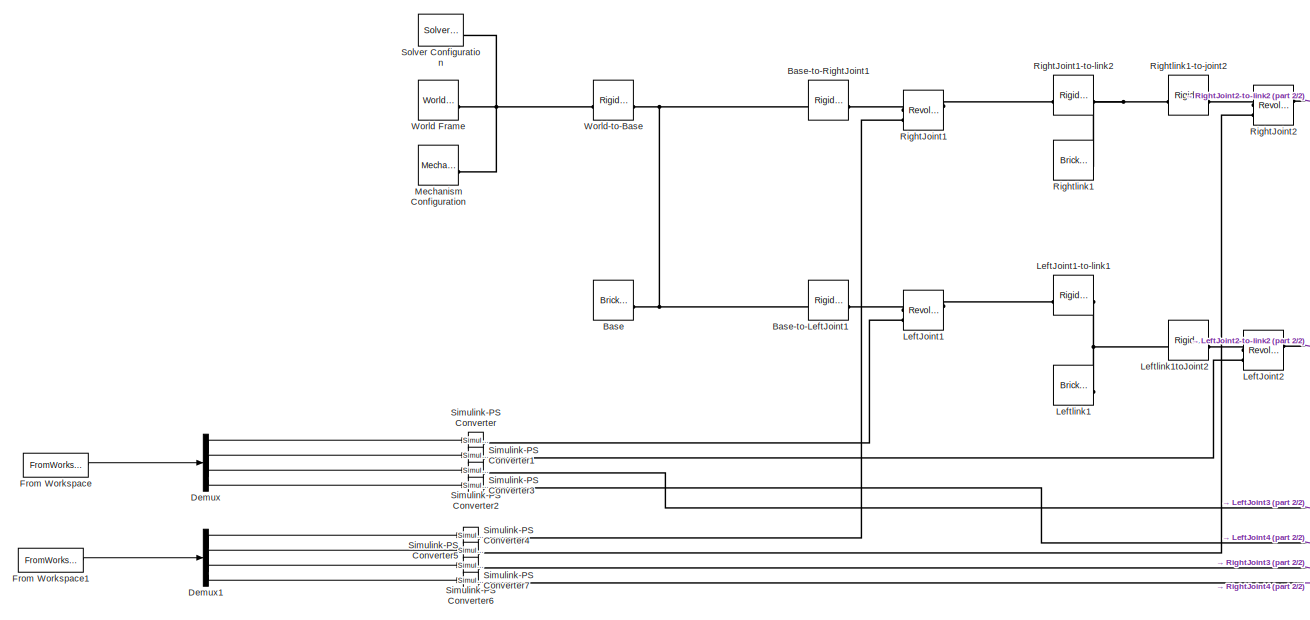
[diagram: root canvas - part 1/2, left side, full height]
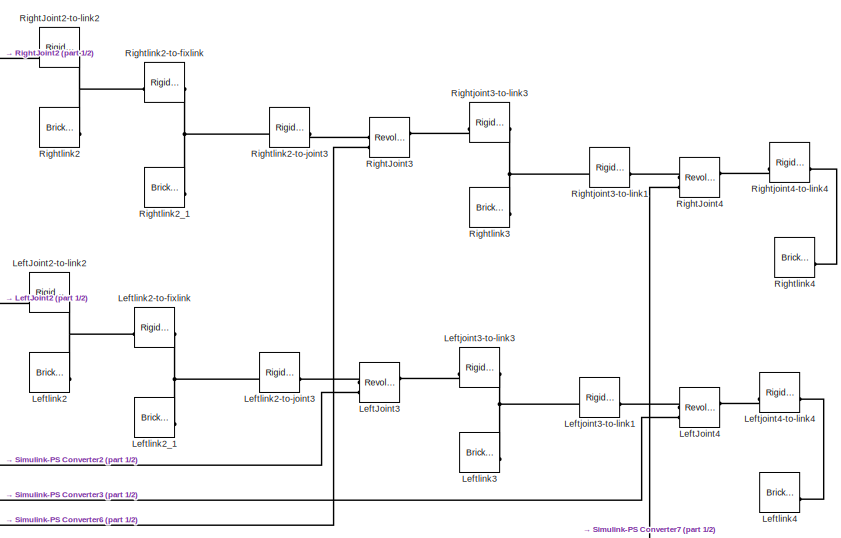
[diagram: root canvas - part 2/2, right side, full height]
MODEL slx_65f04d135356
KIND model
CONFIG AbsTol = auto
CONFIG EnableMultiTasking = off
CONFIG FixedStep = auto
CONFIG MaxStep = auto
CONFIG MinStep = auto
CONFIG RelTol = 1e-3
CONFIG SampleTimeConstraint = Unconstrained
CONFIG SolverName = VariableStepAuto
CONFIG StartTime = 0.0
CONFIG StopTime = time_vector(end)
BLOCK [Reference] Base  REF=sm_lib/Body Elements/Brick Solid
  SourceBlock = sm_lib/Body Elements/Brick Solid
  SourceType = Brick Solid
BLOCK [Reference] Base-to-LeftJoint1  REF=sm_lib/Frames and
Transforms/Rigid
Transform
  SourceBlock = sm_lib/Frames and\nTransforms/Rigid\nTransform
  SourceType = Rigid\nTransform
BLOCK [Reference] Base-to-RightJoint1  REF=sm_lib/Frames and
Transforms/Rigid
Transform
  SourceBlock = sm_lib/Frames and\nTransforms/Rigid\nTransform
  SourceType = Rigid\nTransform
BLOCK [Demux] Demux
BLOCK [Demux] Demux1
BLOCK [FromWorkspace] From Workspace
  SampleTime = Ts
  VariableName = arm1_data
BLOCK [FromWorkspace] From Workspace1
  SampleTime = Ts
  VariableName = arm2_data
BLOCK [Reference] LeftJoint1  REF=sm_lib/Joints/Revolute Joint
  SourceBlock = sm_lib/Joints/Revolute Joint
  SourceType = Revolute Joint
BLOCK [Reference] LeftJoint1-to-link1  REF=sm_lib/Frames and
Transforms/Rigid
Transform
  SourceBlock = sm_lib/Frames and\nTransforms/Rigid\nTransform
  SourceType = Rigid\nTransform
BLOCK [Reference] LeftJoint2  REF=sm_lib/Joints/Revolute Joint
  SourceBlock = sm_lib/Joints/Revolute Joint
  SourceType = Revolute Joint
BLOCK [Reference] LeftJoint2-to-link2  REF=sm_lib/Frames and
Transforms/Rigid
Transform
  SourceBlock = sm_lib/Frames and\nTransforms/Rigid\nTransform
  SourceType = Rigid\nTransform
BLOCK [Reference] LeftJoint3  REF=sm_lib/Joints/Revolute Joint
  SourceBlock = sm_lib/Joints/Revolute Joint
  SourceType = Revolute Joint
BLOCK [Reference] LeftJoint4  REF=sm_lib/Joints/Revolute Joint
  SourceBlock = sm_lib/Joints/Revolute Joint
  SourceType = Revolute Joint
BLOCK [Reference] Leftjoint3-to-link1  REF=sm_lib/Frames and
Transforms/Rigid
Transform
  SourceBlock = sm_lib/Frames and\nTransforms/Rigid\nTransform
  SourceType = Rigid\nTransform
BLOCK [Reference] Leftjoint3-to-link3  REF=sm_lib/Frames and
Transforms/Rigid
Transform
  SourceBlock = sm_lib/Frames and\nTransforms/Rigid\nTransform
  SourceType = Rigid\nTransform
BLOCK [Reference] Leftjoint4-to-link4  REF=sm_lib/Frames and
Transforms/Rigid
Transform
  SourceBlock = sm_lib/Frames and\nTransforms/Rigid\nTransform
  SourceType = Rigid\nTransform
BLOCK [Reference] Leftlink1  REF=sm_lib/Body Elements/Brick Solid
  SourceBlock = sm_lib/Body Elements/Brick Solid
  SourceType = Brick Solid
BLOCK [Reference] Leftlink1toJoint2  REF=sm_lib/Frames and
Transforms/Rigid
Transform
  SourceBlock = sm_lib/Frames and\nTransforms/Rigid\nTransform
  SourceType = Rigid\nTransform
BLOCK [Reference] Leftlink2  REF=sm_lib/Body Elements/Brick Solid
  SourceBlock = sm_lib/Body Elements/Brick Solid
  SourceType = Brick Solid
BLOCK [Reference] Leftlink2-to-fixlink  REF=sm_lib/Frames and
Transforms/Rigid
Transform
  SourceBlock = sm_lib/Frames and\nTransforms/Rigid\nTransform
  SourceType = Rigid\nTransform
BLOCK [Reference] Leftlink2-to-joint3  REF=sm_lib/Frames and
Transforms/Rigid
Transform
  SourceBlock = sm_lib/Frames and\nTransforms/Rigid\nTransform
  SourceType = Rigid\nTransform
BLOCK [Reference] Leftlink2_1  REF=sm_lib/Body Elements/Brick Solid
  SourceBlock = sm_lib/Body Elements/Brick Solid
  SourceType = Brick Solid
BLOCK [Reference] Leftlink3  REF=sm_lib/Body Elements/Brick Solid
  SourceBlock = sm_lib/Body Elements/Brick Solid
  SourceType = Brick Solid
BLOCK [Reference] Leftlink4  REF=sm_lib/Body Elements/Brick Solid
  SourceBlock = sm_lib/Body Elements/Brick Solid
  SourceType = Brick Solid
BLOCK [Reference] Mechanism Configuration  REF=sm_lib/Utilities/Mechanism
Configuration
  SourceBlock = sm_lib/Utilities/Mechanism\nConfiguration
  SourceType = Mechanism\nConfiguration
BLOCK [Reference] RightJoint1  REF=sm_lib/Joints/Revolute Joint
  SourceBlock = sm_lib/Joints/Revolute Joint
  SourceType = Revolute Joint
BLOCK [Reference] RightJoint1-to-link2  REF=sm_lib/Frames and
Transforms/Rigid
Transform
  SourceBlock = sm_lib/Frames and\nTransforms/Rigid\nTransform
  SourceType = Rigid\nTransform
BLOCK [Reference] RightJoint2  REF=sm_lib/Joints/Revolute Joint
  SourceBlock = sm_lib/Joints/Revolute Joint
  SourceType = Revolute Joint
BLOCK [Reference] RightJoint2-to-link2  REF=sm_lib/Frames and
Transforms/Rigid
Transform
  SourceBlock = sm_lib/Frames and\nTransforms/Rigid\nTransform
  SourceType = Rigid\nTransform
BLOCK [Reference] RightJoint3  REF=sm_lib/Joints/Revolute Joint
  SourceBlock = sm_lib/Joints/Revolute Joint
  SourceType = Revolute Joint
BLOCK [Reference] RightJoint4  REF=sm_lib/Joints/Revolute Joint
  SourceBlock = sm_lib/Joints/Revolute Joint
  SourceType = Revolute Joint
BLOCK [Reference] Rightjoint3-to-link1  REF=sm_lib/Frames and
Transforms/Rigid
Transform
  SourceBlock = sm_lib/Frames and\nTransforms/Rigid\nTransform
  SourceType = Rigid\nTransform
BLOCK [Reference] Rightjoint3-to-link3  REF=sm_lib/Frames and
Transforms/Rigid
Transform
  SourceBlock = sm_lib/Frames and\nTransforms/Rigid\nTransform
  SourceType = Rigid\nTransform
BLOCK [Reference] Rightjoint4-to-link4  REF=sm_lib/Frames and
Transforms/Rigid
Transform
  SourceBlock = sm_lib/Frames and\nTransforms/Rigid\nTransform
  SourceType = Rigid\nTransform
BLOCK [Reference] Rightlink1  REF=sm_lib/Body Elements/Brick Solid
  SourceBlock = sm_lib/Body Elements/Brick Solid
  SourceType = Brick Solid
BLOCK [Reference] Rightlink1-to-joint2  REF=sm_lib/Frames and
Transforms/Rigid
Transform
  SourceBlock = sm_lib/Frames and\nTransforms/Rigid\nTransform
  SourceType = Rigid\nTransform
BLOCK [Reference] Rightlink2  REF=sm_lib/Body Elements/Brick Solid
  SourceBlock = sm_lib/Body Elements/Brick Solid
  SourceType = Brick Solid
BLOCK [Reference] Rightlink2-to-fixlink  REF=sm_lib/Frames and
Transforms/Rigid
Transform
  SourceBlock = sm_lib/Frames and\nTransforms/Rigid\nTransform
  SourceType = Rigid\nTransform
BLOCK [Reference] Rightlink2-to-joint3  REF=sm_lib/Frames and
Transforms/Rigid
Transform
  SourceBlock = sm_lib/Frames and\nTransforms/Rigid\nTransform
  SourceType = Rigid\nTransform
BLOCK [Reference] Rightlink2_1  REF=sm_lib/Body Elements/Brick Solid
  SourceBlock = sm_lib/Body Elements/Brick Solid
  SourceType = Brick Solid
BLOCK [Reference] Rightlink3  REF=sm_lib/Body Elements/Brick Solid
  SourceBlock = sm_lib/Body Elements/Brick Solid
  SourceType = Brick Solid
BLOCK [Reference] Rightlink4  REF=sm_lib/Body Elements/Brick Solid
  SourceBlock = sm_lib/Body Elements/Brick Solid
  SourceType = Brick Solid
BLOCK [Reference] Simulink-PS Converter  REF=nesl_utility/Simulink-PS
Converter
  SourceBlock = nesl_utility/Simulink-PS\nConverter
  SourceType = Simulink-PS\nConverter
BLOCK [Reference] Simulink-PS Converter1  REF=nesl_utility/Simulink-PS
Converter
  SourceBlock = nesl_utility/Simulink-PS\nConverter
  SourceType = Simulink-PS\nConverter
BLOCK [Reference] Simulink-PS Converter2  REF=nesl_utility/Simulink-PS
Converter
  SourceBlock = nesl_utility/Simulink-PS\nConverter
  SourceType = Simulink-PS\nConverter
BLOCK [Reference] Simulink-PS Converter3  REF=nesl_utility/Simulink-PS
Converter
  SourceBlock = nesl_utility/Simulink-PS\nConverter
  SourceType = Simulink-PS\nConverter
BLOCK [Reference] Simulink-PS Converter4  REF=nesl_utility/Simulink-PS
Converter
  SourceBlock = nesl_utility/Simulink-PS\nConverter
  SourceType = Simulink-PS\nConverter
BLOCK [Reference] Simulink-PS Converter5  REF=nesl_utility/Simulink-PS
Converter
  SourceBlock = nesl_utility/Simulink-PS\nConverter
  SourceType = Simulink-PS\nConverter
BLOCK [Reference] Simulink-PS Converter6  REF=nesl_utility/Simulink-PS
Converter
  SourceBlock = nesl_utility/Simulink-PS\nConverter
  SourceType = Simulink-PS\nConverter
BLOCK [Reference] Simulink-PS Converter7  REF=nesl_utility/Simulink-PS
Converter
  SourceBlock = nesl_utility/Simulink-PS\nConverter
  SourceType = Simulink-PS\nConverter
BLOCK [Reference] Solver Configuration  REF=nesl_utility/Solver
Configuration
  SourceBlock = nesl_utility/Solver\nConfiguration
  SourceType = Solver\nConfiguration
BLOCK [Reference] World Frame  REF=sm_lib/Frames and
Transforms/World Frame
  SourceBlock = sm_lib/Frames and\nTransforms/World Frame
  SourceType = World Frame
BLOCK [Reference] World-to-Base  REF=sm_lib/Frames and
Transforms/Rigid
Transform
  SourceBlock = sm_lib/Frames and\nTransforms/Rigid\nTransform
  SourceType = Rigid\nTransform
LINE Demux1:1 -> Simulink-PS Converter4:1
LINE Demux1:2 -> Simulink-PS Converter5:1
LINE Demux1:3 -> Simulink-PS Converter6:1
LINE Demux1:4 -> Simulink-PS Converter7:1
LINE Demux:1 -> Simulink-PS Converter:1
LINE Demux:2 -> Simulink-PS Converter1:1
LINE Demux:3 -> Simulink-PS Converter2:1
LINE Demux:4 -> Simulink-PS Converter3:1
LINE From Workspace1:1 -> Demux1:1
LINE From Workspace:1 -> Demux:1
PNET net1: Base-to-LeftJoint1:LConn1 -- Base-to-RightJoint1:LConn1 -- Base:RConn1 -- World-to-Base:RConn1
PLINE Base-to-LeftJoint1:RConn1 -- LeftJoint1:LConn1
PLINE Base-to-RightJoint1:RConn1 -- RightJoint1:LConn1
PLINE LeftJoint1-to-link1:LConn1 -- LeftJoint1:RConn1
PNET net2: LeftJoint1-to-link1:RConn1 -- Leftlink1:RConn1 -- Leftlink1toJoint2:LConn1
PLINE LeftJoint1:LConn2 -- Simulink-PS Converter:RConn1
PLINE LeftJoint2-to-link2:LConn1 -- LeftJoint2:RConn1
PNET net3: LeftJoint2-to-link2:RConn1 -- Leftlink2-to-fixlink:LConn1 -- Leftlink2:RConn1
PLINE LeftJoint2:LConn1 -- Leftlink1toJoint2:RConn1
PLINE LeftJoint2:LConn2 -- Simulink-PS Converter1:RConn1
PLINE LeftJoint3:LConn1 -- Leftlink2-to-joint3:RConn1
PLINE LeftJoint3:LConn2 -- Simulink-PS Converter2:RConn1
PLINE LeftJoint3:RConn1 -- Leftjoint3-to-link3:LConn1
PLINE LeftJoint4:LConn1 -- Leftjoint3-to-link1:RConn1
PLINE LeftJoint4:LConn2 -- Simulink-PS Converter3:RConn1
PLINE LeftJoint4:RConn1 -- Leftjoint4-to-link4:LConn1
PNET net4: Leftjoint3-to-link1:LConn1 -- Leftjoint3-to-link3:RConn1 -- Leftlink3:RConn1
PLINE Leftjoint4-to-link4:RConn1 -- Leftlink4:RConn1
PNET net5: Leftlink2-to-fixlink:RConn1 -- Leftlink2-to-joint3:LConn1 -- Leftlink2_1:RConn1
PNET net6: Mechanism Configuration:RConn1 -- Solver Configuration:RConn1 -- World Frame:RConn1 -- World-to-Base:LConn1
PLINE RightJoint1-to-link2:LConn1 -- RightJoint1:RConn1
PNET net7: RightJoint1-to-link2:RConn1 -- Rightlink1-to-joint2:LConn1 -- Rightlink1:RConn1
PLINE RightJoint1:LConn2 -- Simulink-PS Converter4:RConn1
PLINE RightJoint2-to-link2:LConn1 -- RightJoint2:RConn1
PNET net8: RightJoint2-to-link2:RConn1 -- Rightlink2-to-fixlink:LConn1 -- Rightlink2:RConn1
PLINE RightJoint2:LConn1 -- Rightlink1-to-joint2:RConn1
PLINE RightJoint2:LConn2 -- Simulink-PS Converter5:RConn1
PLINE RightJoint3:LConn1 -- Rightlink2-to-joint3:RConn1
PLINE RightJoint3:LConn2 -- Simulink-PS Converter6:RConn1
PLINE RightJoint3:RConn1 -- Rightjoint3-to-link3:LConn1
PLINE RightJoint4:LConn1 -- Rightjoint3-to-link1:RConn1
PLINE RightJoint4:LConn2 -- Simulink-PS Converter7:RConn1
PLINE RightJoint4:RConn1 -- Rightjoint4-to-link4:LConn1
PNET net9: Rightjoint3-to-link1:LConn1 -- Rightjoint3-to-link3:RConn1 -- Rightlink3:RConn1
PLINE Rightjoint4-to-link4:RConn1 -- Rightlink4:RConn1
PNET net10: Rightlink2-to-fixlink:RConn1 -- Rightlink2-to-joint3:LConn1 -- Rightlink2_1:RConn1
note: PNET lines group multi-terminal physical nets as a canonical sorted terminal list (undirected conserving connections); 2-terminal nets keep the pairwise PLINE form
